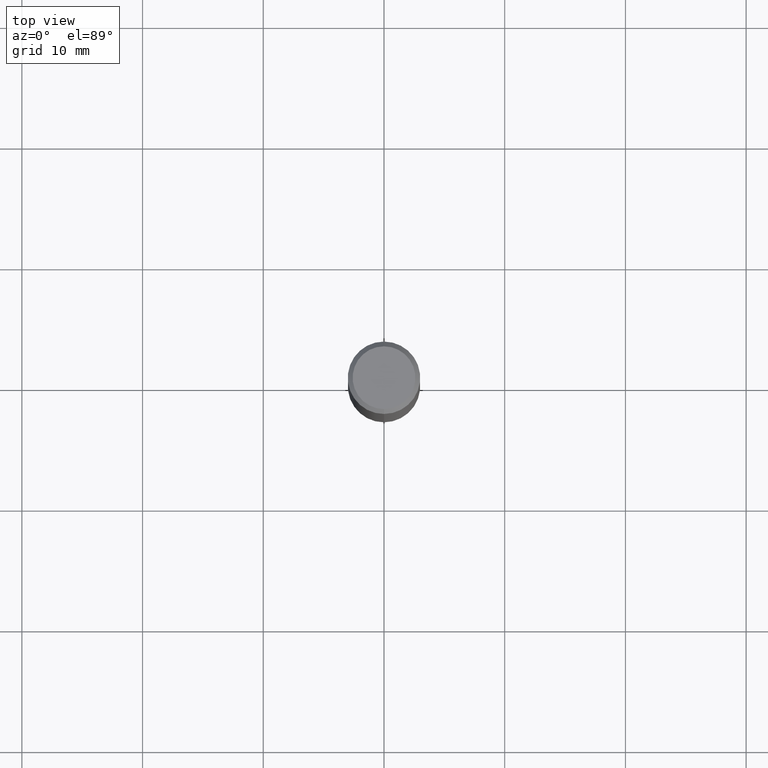
[diagram: clean part render]
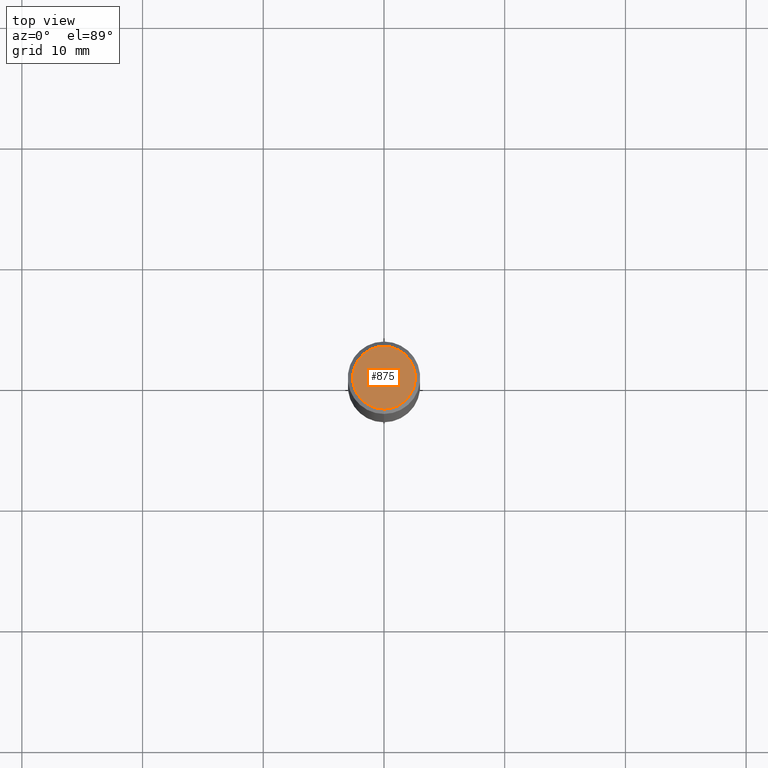
[diagram: same view with one face highlighted and labeled with its STEP entity id]
A machine part, top view. The second image highlights one B-rep face of the part: STEP entity #875.
In plain terms, the highlighted planar face has unit normal (-0, 0, 1).
Its self-contained STEP definition (entity closure, byte-faithful):
#827=VERTEX_POINT('',#1828);
#873=VERTEX_POINT('',#1877);
#875=ADVANCED_FACE('',(#1879),#1880,.T.);
#999=EDGE_CURVE('',#873,#827,#2013,.T.);
#1427=EDGE_CURVE('',#827,#873,#2493,.T.);
#1828=CARTESIAN_POINT('',(3.18397651993818E-016,-2.6,0.0));
#1877=CARTESIAN_POINT('',(0.0,2.6,0.0));
#1879=FACE_OUTER_BOUND('',#3900,.T.);
#1880=PLANE('',#3901);
#2013=CIRCLE('',#4358,2.6);
#2493=CIRCLE('',#7610,2.6);
#3900=EDGE_LOOP('',(#8139,#8140));
#3901=AXIS2_PLACEMENT_3D('',#8141,#8142,#8143);
#4358=AXIS2_PLACEMENT_3D('',#8279,#8280,#8281);
#7610=AXIS2_PLACEMENT_3D('',#8853,#8854,#8855);
#8139=ORIENTED_EDGE('',*,*,#999,.F.);
#8140=ORIENTED_EDGE('',*,*,#1427,.F.);
#8141=CARTESIAN_POINT('',(0.0,1.3,0.0));
#8142=DIRECTION('',(-0.0,0.0,1.0));
#8143=DIRECTION('',(0.0,-1.0,0.0));
#8279=CARTESIAN_POINT('',(0.0,0.0,0.0));
#8280=DIRECTION('',(0.0,0.0,-1.0));
#8281=DIRECTION('',(0.0,1.0,0.0));
#8853=CARTESIAN_POINT('',(0.0,0.0,0.0));
#8854=DIRECTION('',(0.0,0.0,-1.0));
#8855=DIRECTION('',(0.0,1.0,0.0));